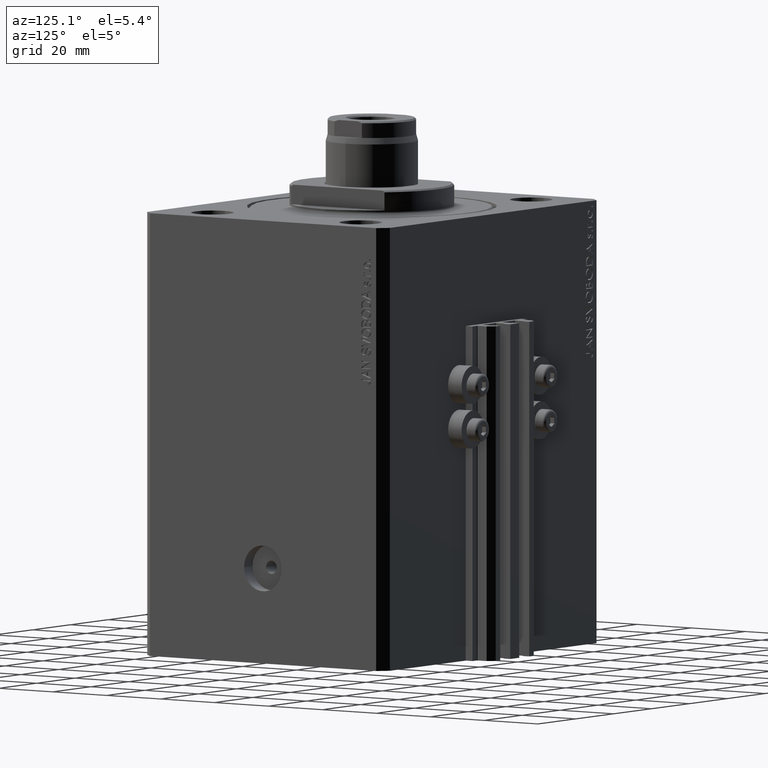
[diagram: clean part render]
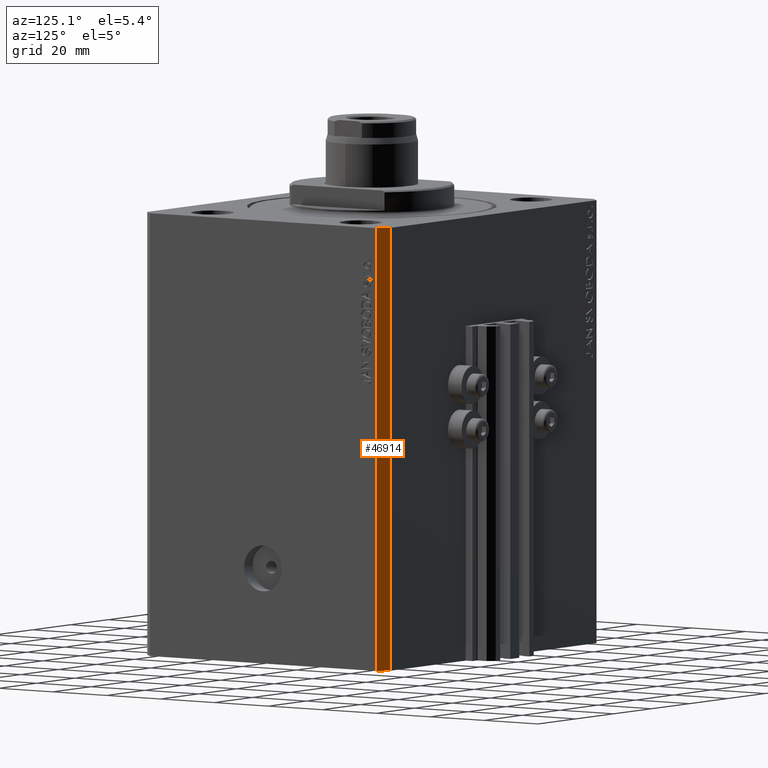
[diagram: same view with one face highlighted and labeled with its STEP entity id]
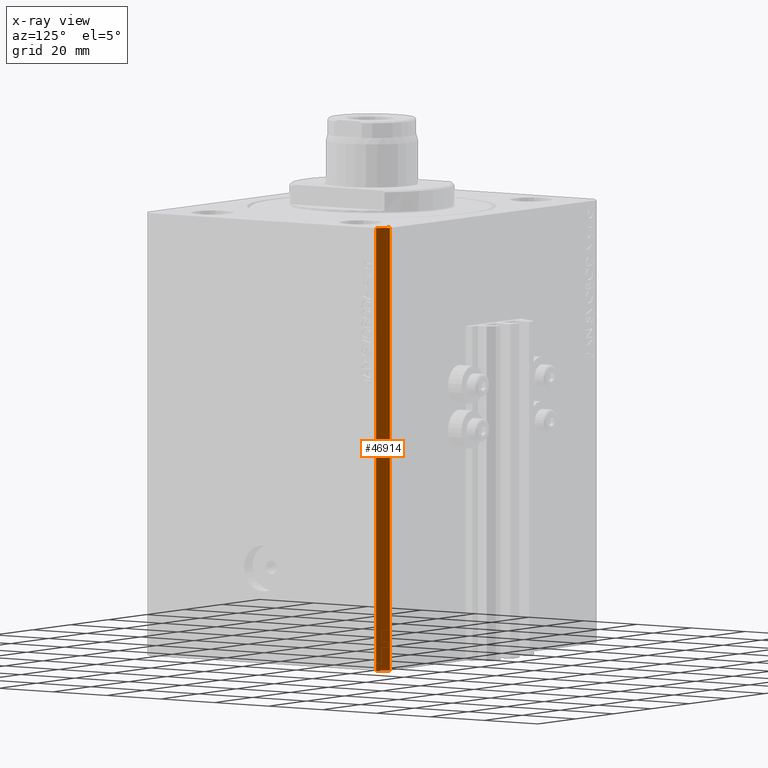
[diagram: x-ray of the same camera — body ghosted, the highlighted face saturated]
A machine part, auxiliary view. The second image highlights one B-rep face of the part: STEP entity #46914.
The next image is the same camera in x-ray: the body ghosted, the highlighted face saturated — about 0% of this face is hidden behind the body in this view.
In plain terms, the highlighted planar face has unit normal (0.7071, 0.7071, 0).
Its self-contained STEP definition (entity closure, byte-faithful):
#69 = EDGE_CURVE ( 'NONE', #32261, #36174, #44031, .T. ) ;
#419 = PLANE ( 'NONE',  #46873 ) ;
#1090 = VECTOR ( 'NONE', #32649, 1000.000000000000000 ) ;
#3508 = DIRECTION ( 'NONE',  ( -0.7071067811865369146, 0.7071067811865581199, 0.000000000000000000 ) ) ;
#3643 = VECTOR ( 'NONE', #21405, 1000.000000000000000 ) ;
#4213 = CARTESIAN_POINT ( 'NONE',  ( 57.50000000000055422, 41.99999999999997868, -135.0000000000000000 ) ) ;
#6887 = ORIENTED_EDGE ( 'NONE', *, *, #44124, .T. ) ;
#7104 = LINE ( 'NONE', #7572, #32344 ) ;
#7572 = CARTESIAN_POINT ( 'NONE',  ( 57.50000000000055422, 41.99999999999997868, 0.000000000000000000 ) ) ;
#9496 = ORIENTED_EDGE ( 'NONE', *, *, #39211, .F. ) ;
#11452 = CARTESIAN_POINT ( 'NONE',  ( 57.50000000000055422, 41.99999999999997868, 0.000000000000000000 ) ) ;
#12241 = CARTESIAN_POINT ( 'NONE',  ( 57.50000000000055422, 41.99999999999997868, -135.0000000000000000 ) ) ;
#13451 = VECTOR ( 'NONE', #17832, 1000.000000000000000 ) ;
#17122 = LINE ( 'NONE', #28735, #3643 ) ;
#17215 = VERTEX_POINT ( 'NONE', #12241 ) ;
#17832 = DIRECTION ( 'NONE',  ( 0.000000000000000000, 0.000000000000000000, 1.000000000000000000 ) ) ;
#18445 = CARTESIAN_POINT ( 'NONE',  ( 54.50000000000059686, 45.00000000000002842, -135.0000000000000000 ) ) ;
#21172 = CARTESIAN_POINT ( 'NONE',  ( 57.50000000000055422, 41.99999999999997868, -135.0000000000000000 ) ) ;
#21405 = DIRECTION ( 'NONE',  ( -0.7071067811865369146, 0.7071067811865581199, 0.000000000000000000 ) ) ;
#24162 = CARTESIAN_POINT ( 'NONE',  ( 54.50000000000059686, 45.00000000000002842, -135.0000000000000000 ) ) ;
#28603 = CARTESIAN_POINT ( 'NONE',  ( 54.50000000000059686, 45.00000000000002842, 0.000000000000000000 ) ) ;
#28735 = CARTESIAN_POINT ( 'NONE',  ( 57.50000000000055422, 41.99999999999997868, -135.0000000000000000 ) ) ;
#29138 = DIRECTION ( 'NONE',  ( -0.7071067811865369146, 0.7071067811865581199, 0.000000000000000000 ) ) ;
#30129 = VERTEX_POINT ( 'NONE', #11452 ) ;
#32261 = VERTEX_POINT ( 'NONE', #24162 ) ;
#32344 = VECTOR ( 'NONE', #29138, 1000.000000000000000 ) ;
#32649 = DIRECTION ( 'NONE',  ( 0.000000000000000000, 0.000000000000000000, 1.000000000000000000 ) ) ;
#36174 = VERTEX_POINT ( 'NONE', #28603 ) ;
#36462 = FACE_OUTER_BOUND ( 'NONE', #36929, .T. ) ;
#36929 = EDGE_LOOP ( 'NONE', ( #45769, #9496, #6887, #37609 ) ) ;
#37609 = ORIENTED_EDGE ( 'NONE', *, *, #69, .T. ) ;
#38092 = EDGE_CURVE ( 'NONE', #30129, #36174, #7104, .T. ) ;
#39211 = EDGE_CURVE ( 'NONE', #17215, #30129, #46752, .T. ) ;
#43576 = DIRECTION ( 'NONE',  ( 0.7071067811865581199, 0.7071067811865369146, -0.000000000000000000 ) ) ;
#44031 = LINE ( 'NONE', #18445, #1090 ) ;
#44124 = EDGE_CURVE ( 'NONE', #17215, #32261, #17122, .T. ) ;
#45769 = ORIENTED_EDGE ( 'NONE', *, *, #38092, .F. ) ;
#46752 = LINE ( 'NONE', #21172, #13451 ) ;
#46873 = AXIS2_PLACEMENT_3D ( 'NONE', #4213, #43576, #3508 ) ;
#46914 = ADVANCED_FACE ( 'NONE', ( #36462 ), #419, .T. ) ;